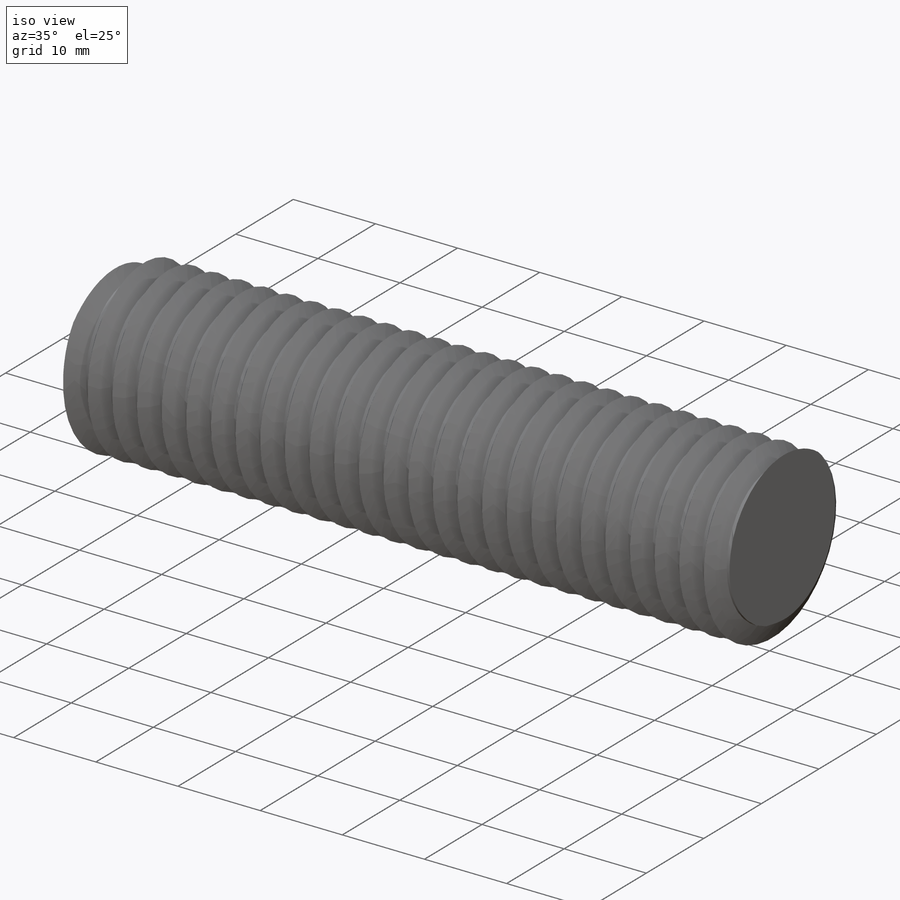
[diagram: iso view]
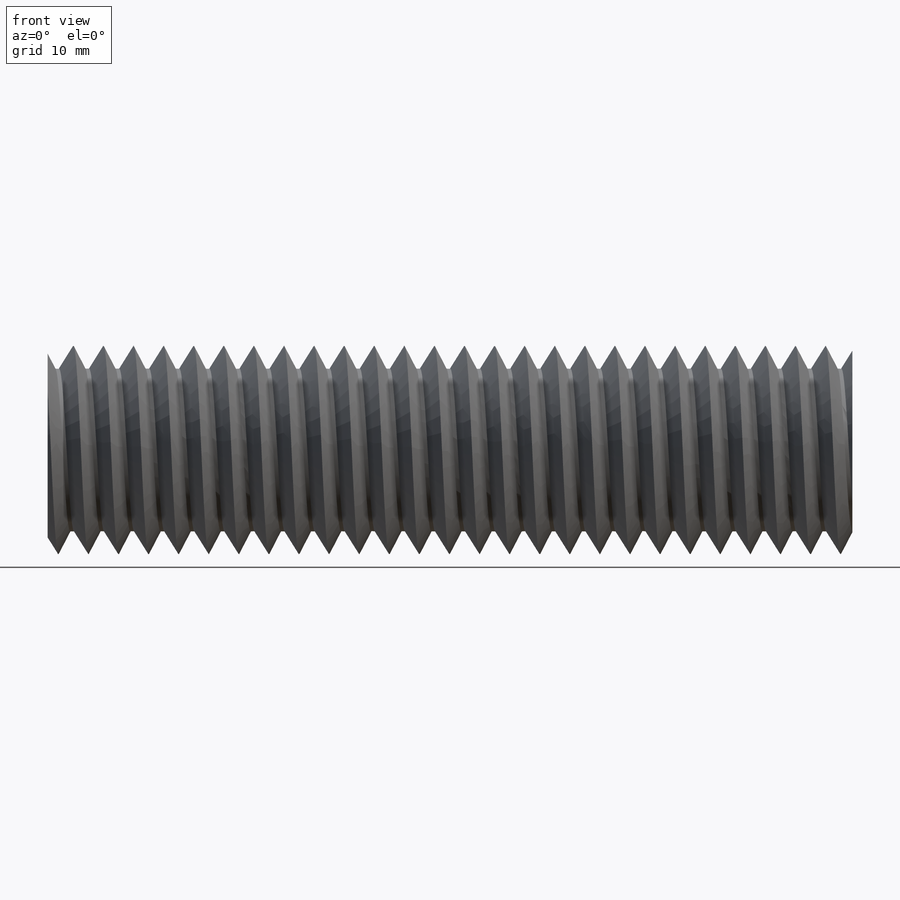
[diagram: front view]
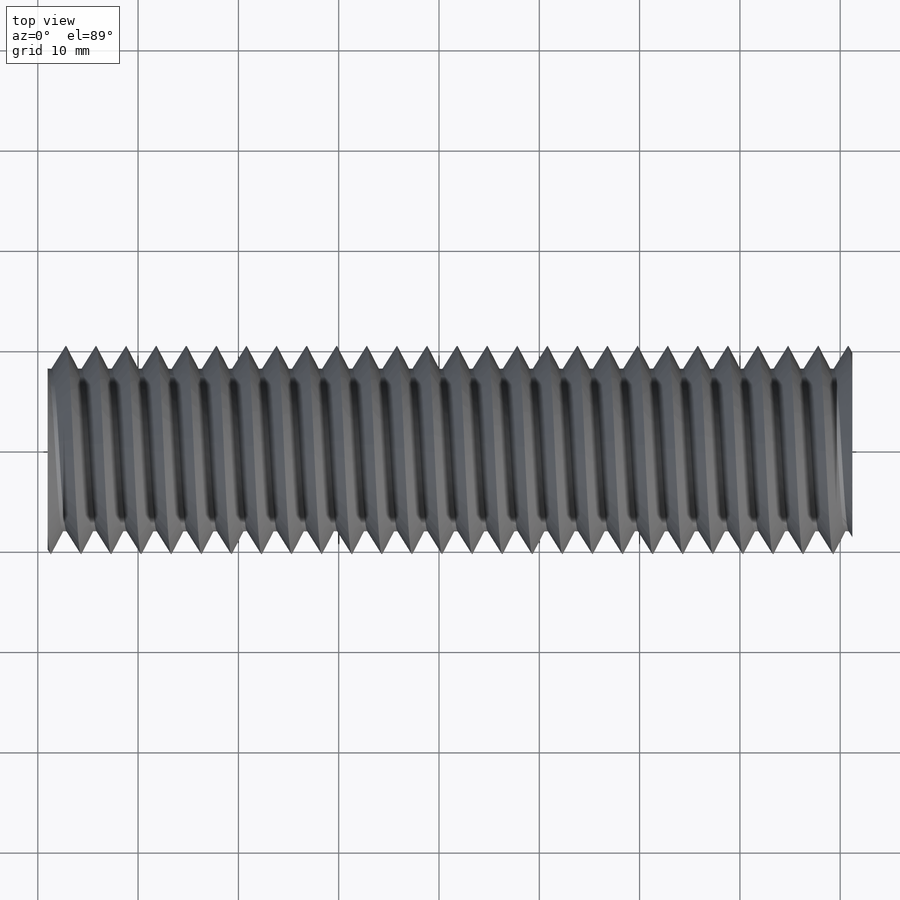
[diagram: top view]
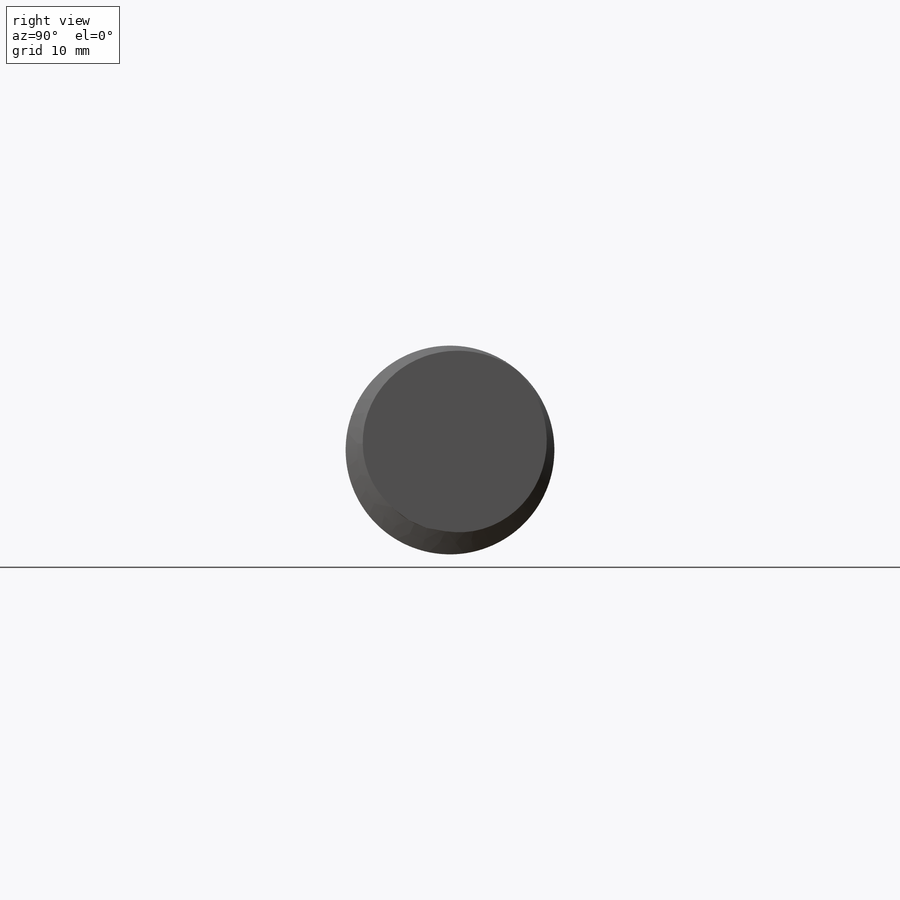
[diagram: right view]
SOLIDWORKS PART (.sldprt)
format: sldprt  version: not decoded by parser v0  size: 786,432 bytes
history: native  units: mm
features: sketch x4, material x1, revolve x1, helix x1, sweep x1 (+12 scaffold rows collapsed)
feature tree (20):
  scaffold x12  (default folders/planes/origin — collapsed)
  material  "Material <not specified>"
  sketch  "Sketch1"  dims[c1.D1=80.0mm c1.D2=0.0mm c1.D3=8.0mm c1.D4=11.0mm c2.D1=11.0mm]
  revolve  "Revolve1"  Angle=360deg
  sketch  "Sketch4"  dims[D1=22.0mm]
  helix  "Helix/Spiral1"  Pitch=86.25mm
  sketch  "Sketch5"  dims[c1.D1=~1.50428mm c1.D2=4.0mm c1.D3=4.0mm c1.D4=0.75mm c1.D5=~1.417716mm c2.D1=1.5mm c2.D2=1.5mm c2.D3=1.5mm c2.D4=~1.921193mm c2.D5=~1.200409mm c3.D4=1.5mm c3.D5=~0.548573mm]
  sweep  "Cut-Sweep1"
  sketch  "Sketch6"  dims[D1=~18.654463mm]
decode coverage: 6 of 7 modeling features carry decoded parameters
note: ~ marks probable driven/reference dimensions
note: suppression state not decoded; provenance and decode notes live in map.json
